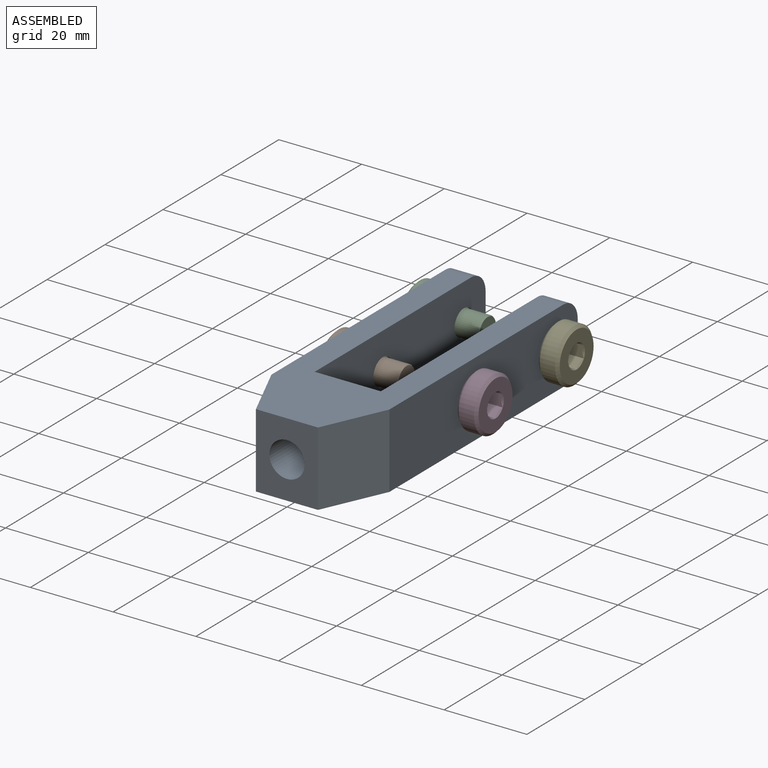
[diagram: assembled view]
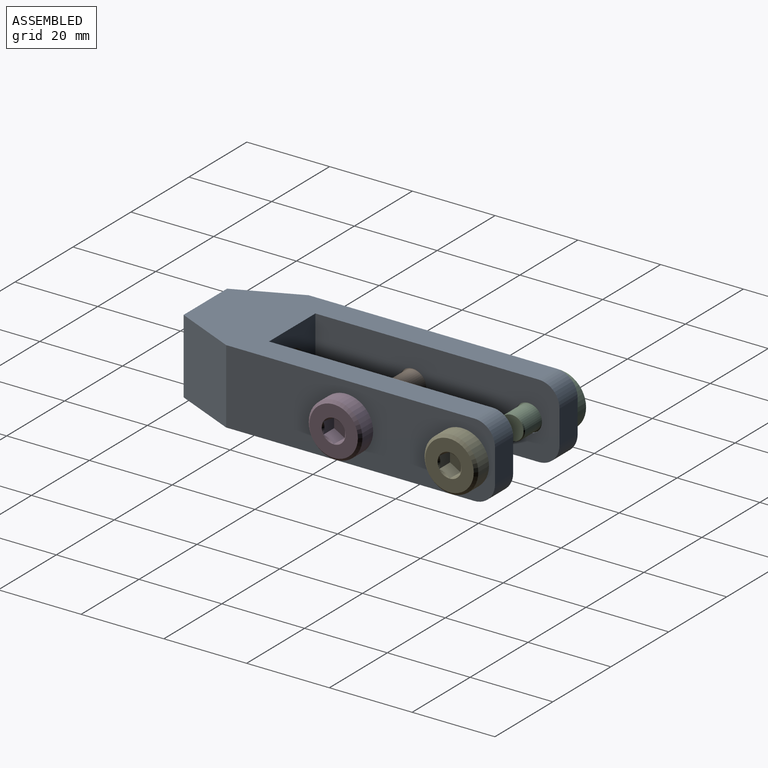
[diagram: assembled view, second angle]
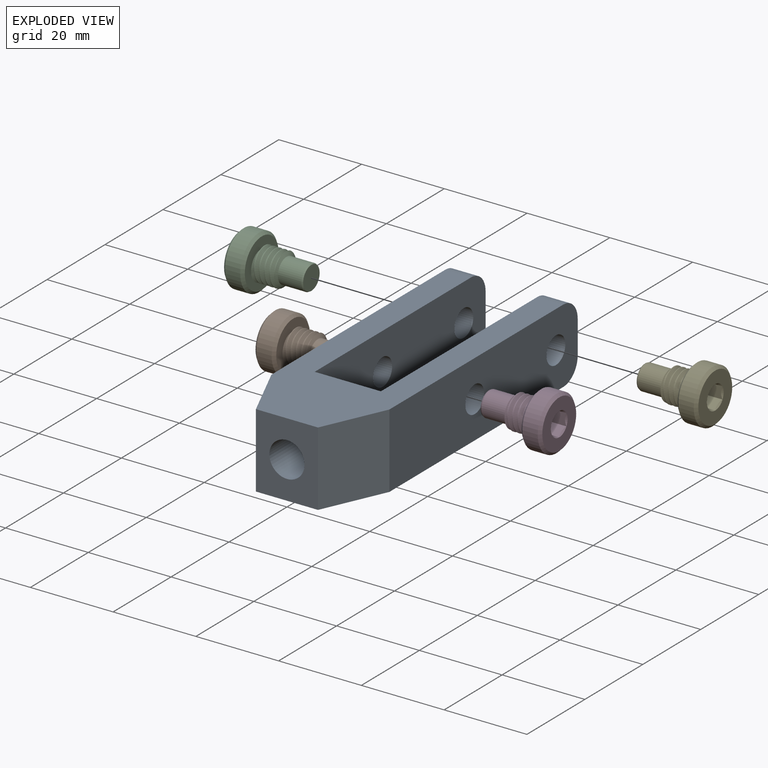
[diagram: exploded view]
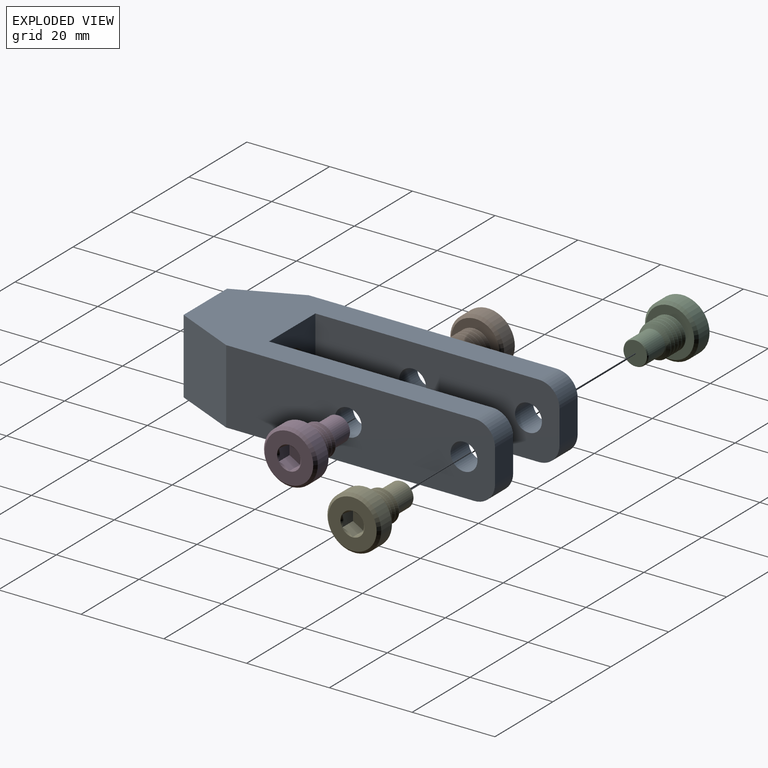
[diagram: exploded view, second angle]
ASSEMBLY  parts=5 mates=4
PART A: 21 faces, bbox 28.5x80x18 mm
  f0: plane 18x15mm, normal (0,-1,0), area 213.3mm2, adj f1,f9,f10,f11,f12
  f1: plane 18x15mm, normal (0.91,-0.41,0), area 296.1mm2, adj f0,f2,f10,f11
  f2: plane 65x18mm, normal (1,0,0), area 1092.9mm2, adj f1,f3,f10,f11,f14,f16,f19,f20
  f3: plane 8x6.25mm, normal (0,1,0), area 50mm2, adj f2,f4,f14,f16
  f4: plane 59x18mm, normal (-1,0,0), area 984.9mm2, adj f3,f5,f10,f11,f14,f16,f19,f20
  f5: plane 18x16mm, normal (0,1,0), area 231.3mm2, adj f4,f6,f10,f11,f12
  f6: plane 59x18mm, normal (1,0,0), area 984.9mm2, adj f5,f7,f10,f11,f13,f15,f17,f18
  f7: plane 8x6.25mm, normal (0,1,0), area 50mm2, adj f6,f8,f13,f15
  f8: plane 65x18mm, normal (-1,0,0), area 1092.9mm2, adj f7,f9,f10,f11,f13,f15,f17,f18
  f9: plane 18x15mm, normal (-0.91,-0.41,0), area 296.1mm2, adj f0,f8,f10,f11
  f10: plane 75x28.5mm, normal (0,0,1), area 1172.3mm2, adj f0,f1,f2,f4,f5,f6,f8,f9
  f11: plane 75x28.5mm, normal (0,0,-1), area 1172.3mm2, adj f0,f1,f2,f4,f5,f6,f8,f9
  f12: cylinder r=4.25mm len=21mm, axis (0,-1,0), area 560.8mm2, adj f0,f5
  f13: cylinder r=5mm len=6.25mm, axis (-1,0,0), area 49.1mm2, adj f6,f7,f8,f11
  f14: cylinder r=5mm len=6.25mm, axis (-1,0,0), area 49.1mm2, adj f2,f3,f4,f11
  f15: cylinder r=5mm len=6.25mm, axis (1,0,0), area 49.1mm2, adj f6,f7,f8,f10
  f16: cylinder r=5mm len=6.25mm, axis (1,0,0), area 49.1mm2, adj f2,f3,f4,f10
  f17: cylinder r=3.25mm len=6.5mm, axis (1,0,0), area 127.6mm2, adj f6,f8
  f18: cylinder r=3.25mm len=6.5mm, axis (1,0,0), area 127.6mm2, adj f6,f8
  f19: cylinder r=3.25mm len=6.5mm, axis (1,0,0), area 127.6mm2, adj f2,f4
  f20: cylinder r=3.25mm len=6.5mm, axis (1,0,0), area 127.6mm2, adj f2,f4
PART B: 26 faces, bbox 14.1x18.1x14.1 mm
  f0: cylinder r=4mm len=8mm, axis (0,-1,0), area 17.3mm2, adj f1,f2,f6,f23
  f1: bspline ~8x8mm, area 96.7mm2, adj f0,f3,f6,f23
  f2: bspline ~9.24x8mm, area 96.5mm2, adj f0,f3,f6,f23
  f3: cylinder r=3.19mm len=6.38mm, axis (0,1,0), area 14.8mm2, adj f1,f2,f6,f23
  f4: cylinder r=6.5mm len=13mm, axis (0,-1,0), area 151.1mm2, adj f20,f21
  f5: plane 12.64x12.64mm, normal (0,1,0), area 81.3mm2, adj f7,f8,f9,f10,f11,f12,f20
  f6: plane 12.19x12.19mm, normal (0,-1,0), area 66.7mm2, adj f0,f1,f2,f3,f21
  f7: cone r=2.89mm half-angle=45deg, axis (0,1,0), area 0mm2, adj f5,f14
  f8: cone r=2.89mm half-angle=45deg, axis (0,1,0), area 0mm2, adj f5,f15
  f9: cone r=2.89mm half-angle=45deg, axis (0,1,0), area 0mm2, adj f5,f16
  f10: cone r=2.89mm half-angle=45deg, axis (0,1,0), area 0mm2, adj f5,f17
  f11: cone r=2.89mm half-angle=45deg, axis (0,1,0), area 0mm2, adj f5,f18
  f12: cone r=2.89mm half-angle=45deg, axis (0,1,0), area 0mm2, adj f5,f19
  f13: plane 5.77x5mm, normal (0,1,0), area 21.7mm2, adj f14,f15,f16,f17,f18,f19
  f14: plane 4.84x3.59mm, normal (-0.5,0,-0.87), area 10.1mm2, adj f7,f13,f15,f19
  f15: plane 4.85x3.99mm, normal (-1,0,0), area 10.1mm2, adj f8,f13,f14,f16
  f16: plane 4.84x3.59mm, normal (-0.5,0,0.87), area 10.1mm2, adj f9,f13,f15,f17
  f17: plane 4.84x3.59mm, normal (0.5,0,0.87), area 10.1mm2, adj f10,f13,f16,f18
  f18: plane 4.85x3.99mm, normal (1,0,0), area 10.1mm2, adj f11,f13,f17,f19
  f19: plane 4.84x3.59mm, normal (0.5,0,-0.87), area 10.1mm2, adj f12,f13,f14,f18
  f20: cone r=5.85mm half-angle=45deg, axis (0,-1,0), area 35.7mm2, adj f4,f5
  f21: cone r=6.5mm half-angle=45deg, axis (0,1,0), area 35.7mm2, adj f4,f6
  f22: cylinder r=3mm len=6mm, axis (0,1,0), area 107.5mm2, adj f23,f25
  f23: cone r=3mm half-angle=63.4deg, axis (0,1,0), area 14.1mm2, adj f0,f1,f2,f3,f22
  f24: plane 5.69x5.69mm, normal (0,-1,0), area 25.4mm2, adj f25
  f25: cone r=3mm half-angle=27.5deg, axis (0,1,0), area 6.1mm2, adj f22,f24
PART C: same geometry as B
PART D: same geometry as B
PART E: same geometry as B
PLACE A at identity
PLACE B rot(axis=(0,0,1),90deg) t=(-2.25,4.5,9)mm
PLACE C rot(axis=(0,0,1),90deg) t=(-2.25,32.5,9)mm
PLACE D rot(axis=(0.71,0.71,0),180deg) t=(2.25,4.5,9)mm
PLACE E rot(axis=(0.71,0.71,0),180deg) t=(2.25,32.5,9)mm
MATE fastened E.f0 <-> A.f17  axis (-1,0,0) through (14.25,32.5,9)mm
MATE fastened C.f0 <-> A.f17  axis (1,0,0) through (-14.25,32.5,9)mm
MATE fastened D.f0 <-> A.f18  axis (-1,0,0) through (14.25,4.5,9)mm
MATE fastened B.f0 <-> A.f18  axis (1,0,0) through (-14.25,4.5,9)mm
